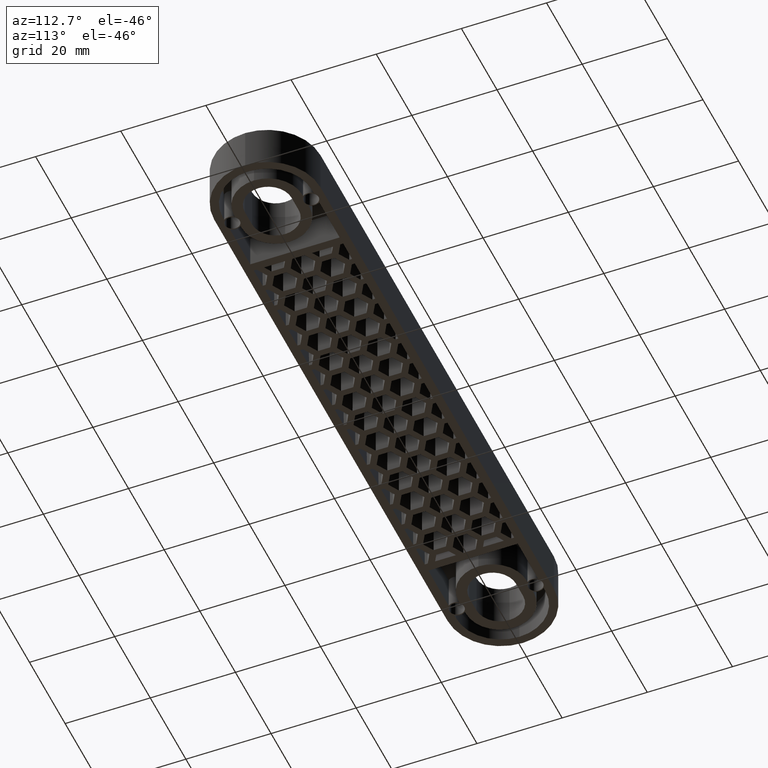
[diagram: clean part render]
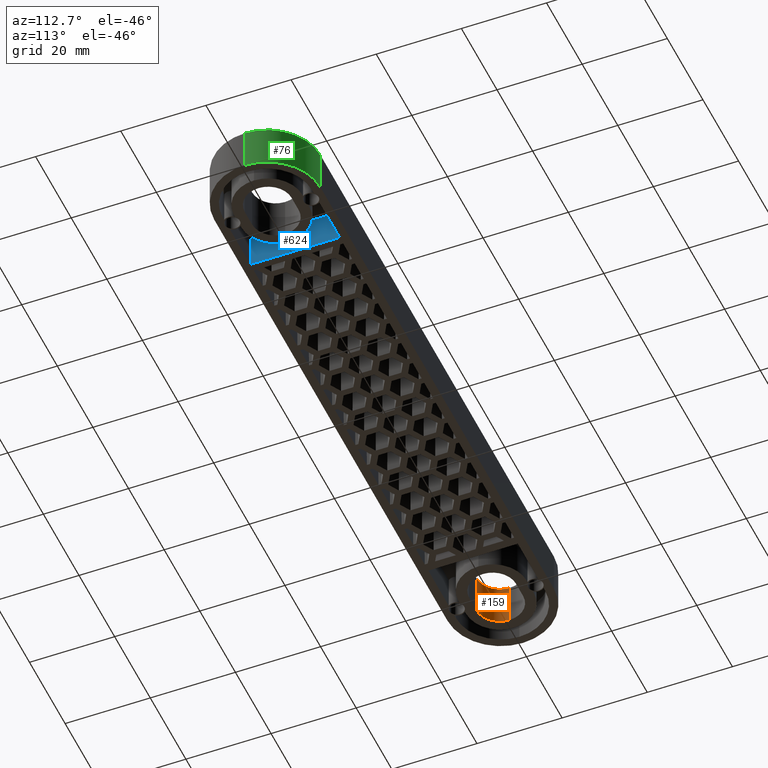
[diagram: same view with three faces highlighted in distinct colors, each labeled with its STEP entity id]
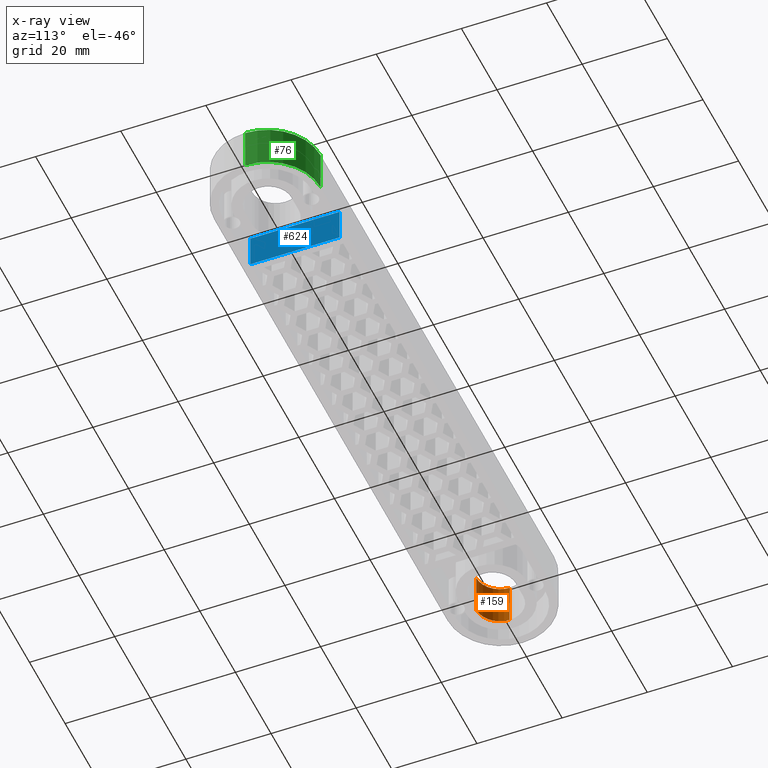
[diagram: x-ray of the same camera — body ghosted, the three highlighted faces saturated]
A machine part, auxiliary view with three faces highlighted in distinct colors.
The next image is the same camera in x-ray (body ghosted, the three faces saturated) — at least one of them is partly hidden behind the body in this view.
Their STEP definitions:

[orange] entity #159 — the highlighted cylindrical surface (edge-blend (fillet) strip) has radius 5.5 mm, axis along (0, -0, -1).
#159 = ADVANCED_FACE( '', ( #951 ), #952, .F. );
#951 = FACE_OUTER_BOUND( '', #2269, .T. );
#952 = CYLINDRICAL_SURFACE( '', #2270, 5.50000000000001 );
#2269 = EDGE_LOOP( '', ( #4451, #4452, #4453, #4454 ) );
#2270 = AXIS2_PLACEMENT_3D( '', #4455, #4456, #4457 );
#4451 = ORIENTED_EDGE( '', *, *, #8367, .T. );
#4452 = ORIENTED_EDGE( '', *, *, #8898, .T. );
#4453 = ORIENTED_EDGE( '', *, *, #8231, .T. );
#4454 = ORIENTED_EDGE( '', *, *, #8897, .F. );
#4455 = CARTESIAN_POINT( '', ( -65.0000000000006, -2.36789755695441E-013, -1.99999999894729E-005 ) );
#4456 = DIRECTION( '', ( 0.000000000000000, -6.12303176911189E-017, -1.00000000000000 ) );
#4457 = DIRECTION( '', ( 2.59888188936538E-017, 1.00000000000000, -6.12303176911189E-017 ) );
#8231 = EDGE_CURVE( '', #9783, #9781, #9784, .T. );
#8367 = EDGE_CURVE( '', #10043, #10041, #10044, .F. );
#8897 = EDGE_CURVE( '', #10043, #9781, #11041, .T. );
#8898 = EDGE_CURVE( '', #10041, #9783, #11042, .T. );
#9781 = VERTEX_POINT( '', #12357 );
#9783 = VERTEX_POINT( '', #12360 );
#9784 = CIRCLE( '', #12361, 5.50000000000001 );
#10041 = VERTEX_POINT( '', #12693 );
#10043 = VERTEX_POINT( '', #12695 );
#10044 = CIRCLE( '', #12696, 5.50000000000001 );
#11041 = LINE( '', #14209, #14210 );
#11042 = LINE( '', #14211, #14212 );
#12357 = CARTESIAN_POINT( '', ( -65.0000000000006, -5.50000000000024, 10.0000099999422 ) );
#12360 = CARTESIAN_POINT( '', ( -70.5000000000008, -1.15307605426268E-014, 10.0000099999422 ) );
#12361 = AXIS2_PLACEMENT_3D( '', #16355, #16356, #16357 );
#12693 = CARTESIAN_POINT( '', ( -70.5000000000007, -1.18719872959650E-014, -9.99999998085865E-006 ) );
#12695 = CARTESIAN_POINT( '', ( -65.0000000000006, -5.50000000000024, -9.99999998052189E-006 ) );
#12696 = AXIS2_PLACEMENT_3D( '', #16613, #16614, #16615 );
#14209 = CARTESIAN_POINT( '', ( -65.0000000000006, -5.50000000000024, -1.99999999891361E-005 ) );
#14210 = VECTOR( '', #17171, 1000.00000000000 );
#14211 = CARTESIAN_POINT( '', ( -70.5000000000008, -1.21430655564440E-014, -1.99999999894729E-005 ) );
#14212 = VECTOR( '', #17172, 1000.00000000000 );
#16355 = CARTESIAN_POINT( '', ( -65.0000000000006, -2.36177450681623E-013, 10.0000099999422 ) );
#16356 = DIRECTION( '', ( 0.000000000000000, 6.12303176911189E-017, 1.00000000000000 ) );
#16357 = DIRECTION( '', ( -2.59888188936538E-017, -1.00000000000000, 6.12303176911189E-017 ) );
#16613 = CARTESIAN_POINT( '', ( -65.0000000000006, -2.36789755083137E-013, -9.99999998085865E-006 ) );
#16614 = DIRECTION( '', ( 0.000000000000000, 6.12303176911189E-017, 1.00000000000000 ) );
#16615 = DIRECTION( '', ( 0.000000000000000, -1.00000000000000, 6.12303176911189E-017 ) );
#17171 = DIRECTION( '', ( 0.000000000000000, 6.12303176911189E-017, 1.00000000000000 ) );
#17172 = DIRECTION( '', ( 0.000000000000000, 6.12303176911189E-017, 1.00000000000000 ) );

[blue] entity #624 — the highlighted planar face has unit normal (-1, -0, 0).
#624 = ADVANCED_FACE( '', ( #1883 ), #1884, .F. );
#1883 = FACE_OUTER_BOUND( '', #3201, .T. );
#1884 = PLANE( '', #3202 );
#3201 = EDGE_LOOP( '', ( #7750, #7751, #7752, #7753 ) );
#3202 = AXIS2_PLACEMENT_3D( '', #7754, #7755, #7756 );
#7750 = ORIENTED_EDGE( '', *, *, #8331, .T. );
#7751 = ORIENTED_EDGE( '', *, *, #8851, .T. );
#7752 = ORIENTED_EDGE( '', *, *, #8284, .T. );
#7753 = ORIENTED_EDGE( '', *, *, #8846, .F. );
#7754 = CARTESIAN_POINT( '', ( 50.0000000000000, 10.5000000000000, -8.00000000009747 ) );
#7755 = DIRECTION( '', ( -1.00000000000000, -1.97215226305253E-031, 1.20755509601965E-047 ) );
#7756 = DIRECTION( '', ( -1.97215226305253E-031, 1.00000000000000, -6.12303176911189E-017 ) );
#8284 = EDGE_CURVE( '', #9884, #9882, #9885, .T. );
#8331 = EDGE_CURVE( '', #9956, #9970, #9972, .T. );
#8846 = EDGE_CURVE( '', #9956, #9882, #10972, .T. );
#8851 = EDGE_CURVE( '', #9970, #9884, #10977, .T. );
#9882 = VERTEX_POINT( '', #12488 );
#9884 = VERTEX_POINT( '', #12491 );
#9885 = LINE( '', #12492, #12493 );
#9956 = VERTEX_POINT( '', #12589 );
#9970 = VERTEX_POINT( '', #12606 );
#9972 = LINE( '', #12609, #12610 );
#10972 = LINE( '', #14099, #14100 );
#10977 = LINE( '', #14109, #14110 );
#12488 = CARTESIAN_POINT( '', ( 50.0000000000000, -10.5000000000000, 7.99999999999997 ) );
#12491 = CARTESIAN_POINT( '', ( 50.0000000000000, 10.5000000000000, 7.99999999999997 ) );
#12492 = CARTESIAN_POINT( '', ( 50.0000000000000, 10.5000000000000, 7.99999999999997 ) );
#12493 = VECTOR( '', #16454, 1000.00000000000 );
#12589 = CARTESIAN_POINT( '', ( 50.0000000000000, -10.5000000000000, -1.32348694720577E-014 ) );
#12606 = CARTESIAN_POINT( '', ( 50.0000000000000, 10.5000000000000, -1.45207061435712E-014 ) );
#12609 = CARTESIAN_POINT( '', ( 50.0000000000000, -1.38777878078145E-015, -1.38777878078145E-014 ) );
#12610 = VECTOR( '', #16535, 1000.00000000000 );
#14099 = CARTESIAN_POINT( '', ( 50.0000000000000, -10.5000000000000, -8.00000000009747 ) );
#14100 = VECTOR( '', #17100, 1000.00000000000 );
#14109 = CARTESIAN_POINT( '', ( 50.0000000000000, 10.5000000000000, -8.00000000009747 ) );
#14110 = VECTOR( '', #17105, 1000.00000000000 );
#16454 = DIRECTION( '', ( -1.97215226305253E-031, -1.00000000000000, 6.12303176911189E-017 ) );
#16535 = DIRECTION( '', ( -1.97215226305253E-031, 1.00000000000000, -6.12303176911189E-017 ) );
#17100 = DIRECTION( '', ( 0.000000000000000, 6.12303176911189E-017, 1.00000000000000 ) );
#17105 = DIRECTION( '', ( 0.000000000000000, 6.12303176911189E-017, 1.00000000000000 ) );

[green] entity #76 — the highlighted cylindrical surface (partial cylindrical patch) has radius 12.5 mm, axis along (-0, -0, -1).
#76 = ADVANCED_FACE( '', ( #695 ), #696, .T. );
#695 = FACE_OUTER_BOUND( '', #2013, .T. );
#696 = CYLINDRICAL_SURFACE( '', #2014, 12.5000000000000 );
#2013 = EDGE_LOOP( '', ( #3371, #3372, #3373, #3374 ) );
#2014 = AXIS2_PLACEMENT_3D( '', #3375, #3376, #3377 );
#3371 = ORIENTED_EDGE( '', *, *, #8235, .T. );
#3372 = ORIENTED_EDGE( '', *, *, #8264, .F. );
#3373 = ORIENTED_EDGE( '', *, *, #8265, .F. );
#3374 = ORIENTED_EDGE( '', *, *, #8266, .T. );
#3375 = CARTESIAN_POINT( '', ( 65.5000000000000, -1.38777878078145E-015, -1.38777878078145E-014 ) );
#3376 = DIRECTION( '', ( -1.12103877145985E-048, -6.12303176911189E-017, -1.00000000000000 ) );
#3377 = DIRECTION( '', ( -1.00000000000000, 1.60814287233912E-016, -9.84670989660330E-033 ) );
#8235 = EDGE_CURVE( '', #9790, #9791, #9792, .T. );
#8264 = EDGE_CURVE( '', #9848, #9791, #9849, .T. );
#8265 = EDGE_CURVE( '', #9850, #9848, #9851, .T. );
#8266 = EDGE_CURVE( '', #9850, #9790, #9852, .T. );
#9790 = VERTEX_POINT( '', #12367 );
#9791 = VERTEX_POINT( '', #12368 );
#9792 = CIRCLE( '', #12369, 12.5000000000000 );
#9848 = VERTEX_POINT( '', #12444 );
#9849 = LINE( '', #12445, #12446 );
#9850 = VERTEX_POINT( '', #12447 );
#9851 = CIRCLE( '', #12448, 12.5000000000000 );
#9852 = LINE( '', #12449, #12450 );
#12367 = CARTESIAN_POINT( '', ( 65.5000000000001, 12.5000000000000, 9.99999999999998 ) );
#12368 = CARTESIAN_POINT( '', ( 78.0000000000000, -7.91833504147631E-015, 9.99999999999998 ) );
#12369 = AXIS2_PLACEMENT_3D( '', #16367, #16368, #16369 );
#12444 = CARTESIAN_POINT( '', ( 78.0000000000000, -8.53063821838750E-015, -1.38777878078145E-014 ) );
#12445 = CARTESIAN_POINT( '', ( 78.0000000000000, -8.53063821838750E-015, -1.38777878078145E-014 ) );
#12446 = VECTOR( '', #16416, 1000.00000000000 );
#12447 = CARTESIAN_POINT( '', ( 65.5000000000001, 12.5000000000000, -1.46431667789534E-014 ) );
#12448 = AXIS2_PLACEMENT_3D( '', #16417, #16418, #16419 );
#12449 = CARTESIAN_POINT( '', ( 65.5000000000001, 12.5000000000000, -1.46431667789534E-014 ) );
#12450 = VECTOR( '', #16420, 1000.00000000000 );
#16367 = CARTESIAN_POINT( '', ( 65.5000000000000, -7.75475603870257E-016, 9.99999999999998 ) );
#16368 = DIRECTION( '', ( -1.12103877145985E-048, -6.12303176911189E-017, -1.00000000000000 ) );
#16369 = DIRECTION( '', ( 1.60814287233912E-016, 1.00000000000000, -6.12303176911189E-017 ) );
#16416 = DIRECTION( '', ( 0.000000000000000, 6.12303176911189E-017, 1.00000000000000 ) );
#16417 = CARTESIAN_POINT( '', ( 65.5000000000000, -1.38777878078145E-015, -1.38777878078145E-014 ) );
#16418 = DIRECTION( '', ( -1.12103877145985E-048, -6.12303176911189E-017, -1.00000000000000 ) );
#16419 = DIRECTION( '', ( 1.60814287233912E-016, 1.00000000000000, -6.12303176911189E-017 ) );
#16420 = DIRECTION( '', ( 0.000000000000000, 6.12303176911189E-017, 1.00000000000000 ) );